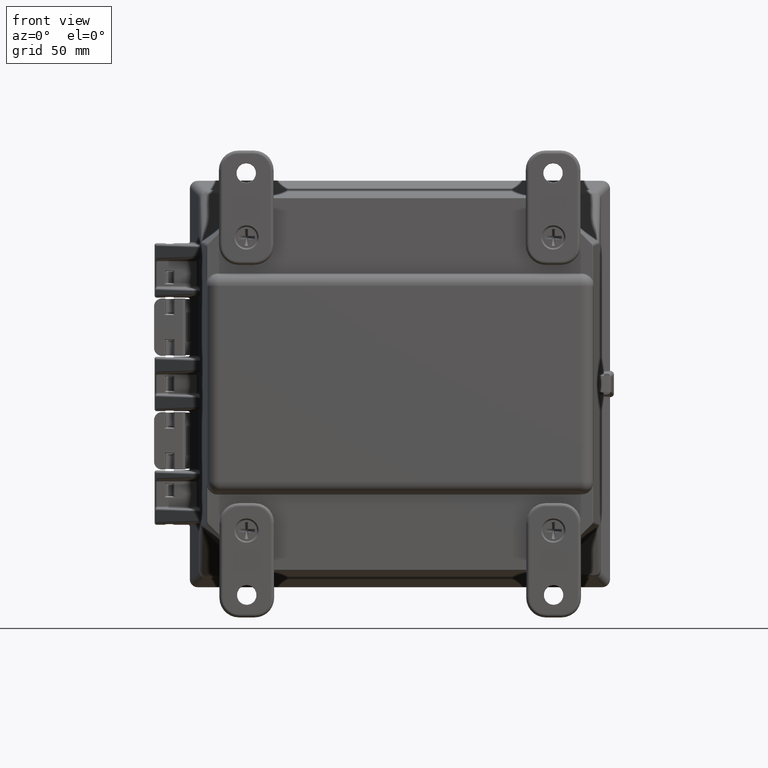
[diagram: clean part render]
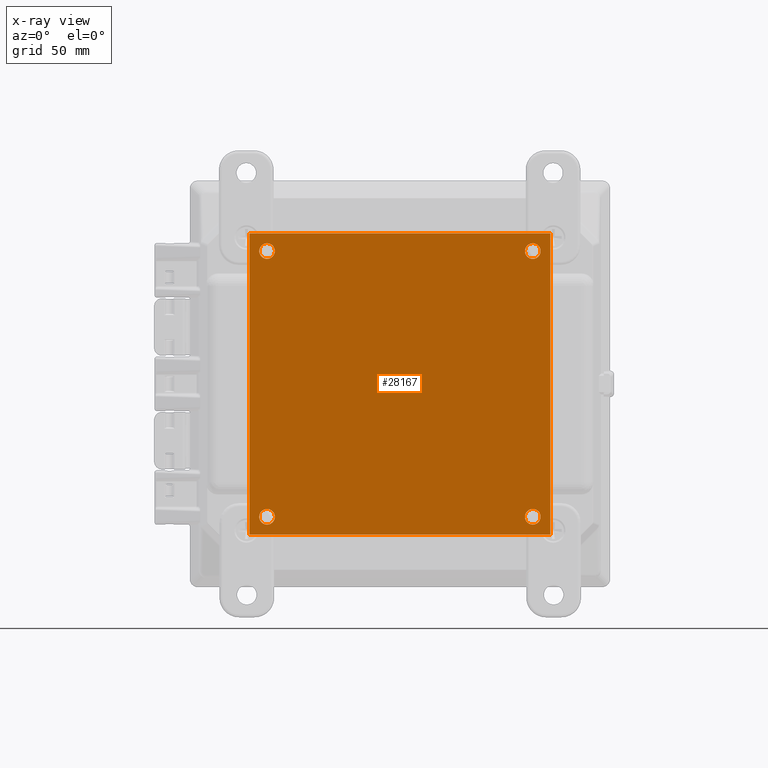
[diagram: x-ray — body ghosted, one internal face saturated and labeled with its STEP entity id]
A machine part, front view, then the same camera in x-ray: the body is ghosted and one INTERNAL B-rep face — a face not visible from any outside direction — is saturated and labeled: STEP entity #28167.
In plain terms, the highlighted planar face has unit normal (0, -1, 0).
Its self-contained STEP definition (entity closure, byte-faithful):
#3210 = VECTOR ( 'NONE', #89578, 39.37007874015748100 ) ;
#3396 = ORIENTED_EDGE ( 'NONE', *, *, #17911, .F. ) ;
#3998 = DIRECTION ( 'NONE',  ( 0.0000000000000000000, 0.0000000000000000000, 1.000000000000000000 ) ) ;
#4251 = VERTEX_POINT ( 'NONE', #85524 ) ;
#4271 = DIRECTION ( 'NONE',  ( 0.0000000000000000000, 1.000000000000000000, 0.0000000000000000000 ) ) ;
#4753 = DIRECTION ( 'NONE',  ( 0.0000000000000000000, 0.0000000000000000000, 1.000000000000000000 ) ) ;
#5418 = CARTESIAN_POINT ( 'NONE',  ( -2.125000000000000900, -0.09999999999999999200, 2.125000000000000900 ) ) ;
#5854 = ORIENTED_EDGE ( 'NONE', *, *, #101607, .F. ) ;
#7388 = DIRECTION ( 'NONE',  ( 0.0000000000000000000, 1.000000000000000000, 0.0000000000000000000 ) ) ;
#8367 = CARTESIAN_POINT ( 'NONE',  ( -2.125000000000000900, -0.09999999999999999200, 2.250000000000000400 ) ) ;
#8412 = AXIS2_PLACEMENT_3D ( 'NONE', #30957, #91805, #39747 ) ;
#9254 = EDGE_CURVE ( 'NONE', #14805, #76199, #83863, .T. ) ;
#9324 = ORIENTED_EDGE ( 'NONE', *, *, #98144, .T. ) ;
#9810 = AXIS2_PLACEMENT_3D ( 'NONE', #89003, #45683, #106581 ) ;
#10483 = EDGE_CURVE ( 'NONE', #67623, #4251, #40165, .T. ) ;
#10591 = CARTESIAN_POINT ( 'NONE',  ( -2.406250000000000400, -0.09999999999999999200, 2.406250000000000900 ) ) ;
#11913 = EDGE_LOOP ( 'NONE', ( #70263, #70167 ) ) ;
#13996 = EDGE_CURVE ( 'NONE', #4251, #67623, #84431, .T. ) ;
#14171 = DIRECTION ( 'NONE',  ( 0.0000000000000000000, 0.0000000000000000000, 1.000000000000000000 ) ) ;
#14309 = FACE_BOUND ( 'NONE', #64836, .T. ) ;
#14805 = VERTEX_POINT ( 'NONE', #20097 ) ;
#16420 = CIRCLE ( 'NONE', #22626, 0.1249999999999999000 ) ;
#17911 = EDGE_CURVE ( 'NONE', #77037, #102074, #64482, .T. ) ;
#18644 = EDGE_CURVE ( 'NONE', #67270, #78217, #84769, .T. ) ;
#20097 = CARTESIAN_POINT ( 'NONE',  ( -2.125000000000000900, -0.09999999999999999200, 2.000000000000000900 ) ) ;
#20972 = EDGE_CURVE ( 'NONE', #55484, #35765, #46291, .T. ) ;
#22626 = AXIS2_PLACEMENT_3D ( 'NONE', #56435, #4271, #65171 ) ;
#25562 = AXIS2_PLACEMENT_3D ( 'NONE', #97191, #45103, #106005 ) ;
#26482 = VERTEX_POINT ( 'NONE', #63350 ) ;
#27790 = CARTESIAN_POINT ( 'NONE',  ( -2.406250000000000400, -0.09999999999999999200, -2.406249999999999100 ) ) ;
#28163 = PLANE ( 'NONE',  #9810 ) ;
#28167 = ADVANCED_FACE ( 'NONE', ( #14309, #83690, #86424, #37447, #104180 ), #28163, .T. ) ;
#28728 = CARTESIAN_POINT ( 'NONE',  ( -2.406250000000000400, -0.09999999999999999200, -2.406249999999999100 ) ) ;
#29857 = AXIS2_PLACEMENT_3D ( 'NONE', #5418, #66305, #14171 ) ;
#30957 = CARTESIAN_POINT ( 'NONE',  ( -2.125000000000000900, -0.09999999999999999200, -2.124999999999999100 ) ) ;
#35130 = CARTESIAN_POINT ( 'NONE',  ( 2.124999999999999600, -0.09999999999999999200, -1.999999999999999100 ) ) ;
#35765 = VERTEX_POINT ( 'NONE', #35130 ) ;
#36588 = LINE ( 'NONE', #97150, #77399 ) ;
#37447 = FACE_BOUND ( 'NONE', #11913, .T. ) ;
#38563 = CIRCLE ( 'NONE', #25562, 0.1249999999999999000 ) ;
#38755 = ORIENTED_EDGE ( 'NONE', *, *, #89900, .F. ) ;
#39747 = DIRECTION ( 'NONE',  ( 0.0000000000000000000, 0.0000000000000000000, 1.000000000000000000 ) ) ;
#40165 = CIRCLE ( 'NONE', #56208, 0.1249999999999999000 ) ;
#41630 = EDGE_CURVE ( 'NONE', #76199, #14805, #50105, .T. ) ;
#42849 = LINE ( 'NONE', #94785, #63242 ) ;
#43420 = ORIENTED_EDGE ( 'NONE', *, *, #63784, .T. ) ;
#45103 = DIRECTION ( 'NONE',  ( 0.0000000000000000000, 1.000000000000000000, 0.0000000000000000000 ) ) ;
#45683 = DIRECTION ( 'NONE',  ( 0.0000000000000000000, -1.000000000000000000, 0.0000000000000000000 ) ) ;
#46291 = CIRCLE ( 'NONE', #91160, 0.1249999999999999000 ) ;
#48810 = DIRECTION ( 'NONE',  ( 0.0000000000000000000, 1.000000000000000000, 0.0000000000000000000 ) ) ;
#50105 = CIRCLE ( 'NONE', #64607, 0.1249999999999999000 ) ;
#55484 = VERTEX_POINT ( 'NONE', #76924 ) ;
#56146 = EDGE_LOOP ( 'NONE', ( #9324, #77192 ) ) ;
#56174 = DIRECTION ( 'NONE',  ( 0.0000000000000000000, 1.000000000000000000, 0.0000000000000000000 ) ) ;
#56208 = AXIS2_PLACEMENT_3D ( 'NONE', #109073, #56915, #4753 ) ;
#56435 = CARTESIAN_POINT ( 'NONE',  ( 2.124999999999999600, -0.09999999999999999200, 2.125000000000000900 ) ) ;
#56915 = DIRECTION ( 'NONE',  ( 0.0000000000000000000, 1.000000000000000000, 0.0000000000000000000 ) ) ;
#56932 = CARTESIAN_POINT ( 'NONE',  ( -2.125000000000000900, -0.09999999999999999200, -2.249999999999999100 ) ) ;
#58208 = CARTESIAN_POINT ( 'NONE',  ( 2.406249999999999600, -0.09999999999999999200, -2.406249999999999100 ) ) ;
#59161 = EDGE_LOOP ( 'NONE', ( #80619, #43420 ) ) ;
#59515 = CARTESIAN_POINT ( 'NONE',  ( 2.124999999999999600, -0.09999999999999999200, -2.124999999999999100 ) ) ;
#62706 = DIRECTION ( 'NONE',  ( 1.000000000000000000, 0.0000000000000000000, 0.0000000000000000000 ) ) ;
#63242 = VECTOR ( 'NONE', #86012, 39.37007874015748100 ) ;
#63350 = CARTESIAN_POINT ( 'NONE',  ( 2.124999999999999600, -0.09999999999999999200, 2.250000000000000900 ) ) ;
#63784 = EDGE_CURVE ( 'NONE', #72347, #26482, #16420, .T. ) ;
#64482 = LINE ( 'NONE', #28728, #3210 ) ;
#64607 = AXIS2_PLACEMENT_3D ( 'NONE', #100908, #48810, #109705 ) ;
#64836 = EDGE_LOOP ( 'NONE', ( #109415, #84535 ) ) ;
#65171 = DIRECTION ( 'NONE',  ( 0.0000000000000000000, 0.0000000000000000000, 1.000000000000000000 ) ) ;
#65423 = CARTESIAN_POINT ( 'NONE',  ( -2.406250000000000400, -0.09999999999999999200, 2.406250000000000900 ) ) ;
#66305 = DIRECTION ( 'NONE',  ( 0.0000000000000000000, 1.000000000000000000, 0.0000000000000000000 ) ) ;
#67270 = VERTEX_POINT ( 'NONE', #65423 ) ;
#67623 = VERTEX_POINT ( 'NONE', #56932 ) ;
#68270 = DIRECTION ( 'NONE',  ( 0.0000000000000000000, 0.0000000000000000000, 1.000000000000000000 ) ) ;
#69354 = EDGE_CURVE ( 'NONE', #26482, #72347, #79590, .T. ) ;
#70167 = ORIENTED_EDGE ( 'NONE', *, *, #10483, .T. ) ;
#70263 = ORIENTED_EDGE ( 'NONE', *, *, #13996, .T. ) ;
#71665 = ORIENTED_EDGE ( 'NONE', *, *, #18644, .F. ) ;
#72347 = VERTEX_POINT ( 'NONE', #104422 ) ;
#72884 = EDGE_LOOP ( 'NONE', ( #5854, #3396, #38755, #71665 ) ) ;
#76199 = VERTEX_POINT ( 'NONE', #8367 ) ;
#76924 = CARTESIAN_POINT ( 'NONE',  ( 2.124999999999999600, -0.09999999999999999200, -2.249999999999999100 ) ) ;
#77037 = VERTEX_POINT ( 'NONE', #58208 ) ;
#77192 = ORIENTED_EDGE ( 'NONE', *, *, #20972, .T. ) ;
#77399 = VECTOR ( 'NONE', #88370, 39.37007874015748100 ) ;
#78217 = VERTEX_POINT ( 'NONE', #80990 ) ;
#79590 = CIRCLE ( 'NONE', #102464, 0.1249999999999999000 ) ;
#80619 = ORIENTED_EDGE ( 'NONE', *, *, #69354, .T. ) ;
#80990 = CARTESIAN_POINT ( 'NONE',  ( 2.406249999999999600, -0.09999999999999999200, 2.406250000000000900 ) ) ;
#83690 = FACE_BOUND ( 'NONE', #59161, .T. ) ;
#83863 = CIRCLE ( 'NONE', #29857, 0.1249999999999999000 ) ;
#84431 = CIRCLE ( 'NONE', #8412, 0.1249999999999999000 ) ;
#84535 = ORIENTED_EDGE ( 'NONE', *, *, #9254, .T. ) ;
#84769 = LINE ( 'NONE', #10591, #105248 ) ;
#85524 = CARTESIAN_POINT ( 'NONE',  ( -2.125000000000000900, -0.09999999999999999200, -1.999999999999999300 ) ) ;
#86012 = DIRECTION ( 'NONE',  ( 0.0000000000000000000, 0.0000000000000000000, -1.000000000000000000 ) ) ;
#86424 = FACE_BOUND ( 'NONE', #56146, .T. ) ;
#88370 = DIRECTION ( 'NONE',  ( -0.0000000000000000000, -0.0000000000000000000, 1.000000000000000000 ) ) ;
#89003 = CARTESIAN_POINT ( 'NONE',  ( -2.406250000000000400, -0.09999999999999999200, -2.406249999999999100 ) ) ;
#89578 = DIRECTION ( 'NONE',  ( -1.000000000000000000, -0.0000000000000000000, -0.0000000000000000000 ) ) ;
#89900 = EDGE_CURVE ( 'NONE', #78217, #77037, #42849, .T. ) ;
#91160 = AXIS2_PLACEMENT_3D ( 'NONE', #59515, #7388, #68270 ) ;
#91805 = DIRECTION ( 'NONE',  ( 0.0000000000000000000, 1.000000000000000000, 0.0000000000000000000 ) ) ;
#94785 = CARTESIAN_POINT ( 'NONE',  ( 2.406249999999999600, -0.09999999999999999200, 2.406250000000000900 ) ) ;
#97150 = CARTESIAN_POINT ( 'NONE',  ( -2.406250000000000400, -0.09999999999999999200, 2.406250000000000900 ) ) ;
#97191 = CARTESIAN_POINT ( 'NONE',  ( 2.124999999999999600, -0.09999999999999999200, -2.124999999999999100 ) ) ;
#98144 = EDGE_CURVE ( 'NONE', #35765, #55484, #38563, .T. ) ;
#100908 = CARTESIAN_POINT ( 'NONE',  ( -2.125000000000000900, -0.09999999999999999200, 2.125000000000000900 ) ) ;
#101607 = EDGE_CURVE ( 'NONE', #102074, #67270, #36588, .T. ) ;
#102074 = VERTEX_POINT ( 'NONE', #27790 ) ;
#102464 = AXIS2_PLACEMENT_3D ( 'NONE', #108330, #56174, #3998 ) ;
#104180 = FACE_OUTER_BOUND ( 'NONE', #72884, .T. ) ;
#104422 = CARTESIAN_POINT ( 'NONE',  ( 2.124999999999999600, -0.09999999999999999200, 2.000000000000000900 ) ) ;
#105248 = VECTOR ( 'NONE', #62706, 39.37007874015748100 ) ;
#106005 = DIRECTION ( 'NONE',  ( 0.0000000000000000000, 0.0000000000000000000, 1.000000000000000000 ) ) ;
#106581 = DIRECTION ( 'NONE',  ( 0.0000000000000000000, -0.0000000000000000000, -1.000000000000000000 ) ) ;
#108330 = CARTESIAN_POINT ( 'NONE',  ( 2.124999999999999600, -0.09999999999999999200, 2.125000000000000900 ) ) ;
#109073 = CARTESIAN_POINT ( 'NONE',  ( -2.125000000000000900, -0.09999999999999999200, -2.124999999999999100 ) ) ;
#109415 = ORIENTED_EDGE ( 'NONE', *, *, #41630, .T. ) ;
#109705 = DIRECTION ( 'NONE',  ( 0.0000000000000000000, 0.0000000000000000000, 1.000000000000000000 ) ) ;